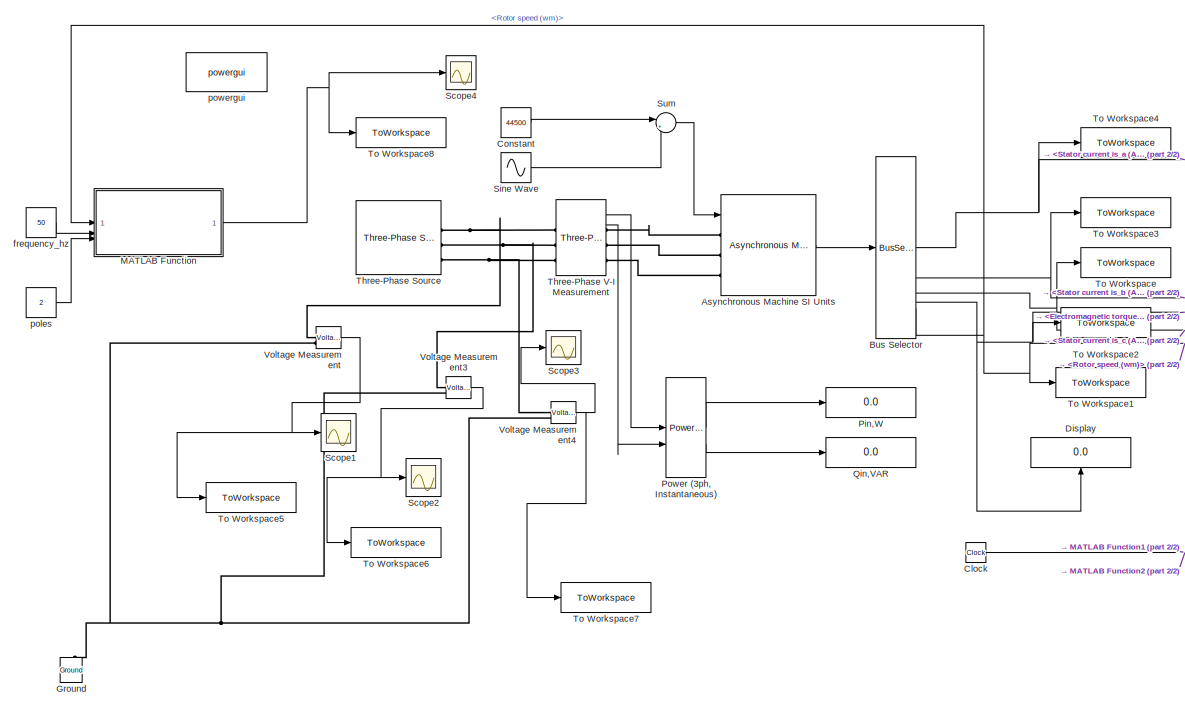
[diagram: root canvas - part 1/2, left side, full height]
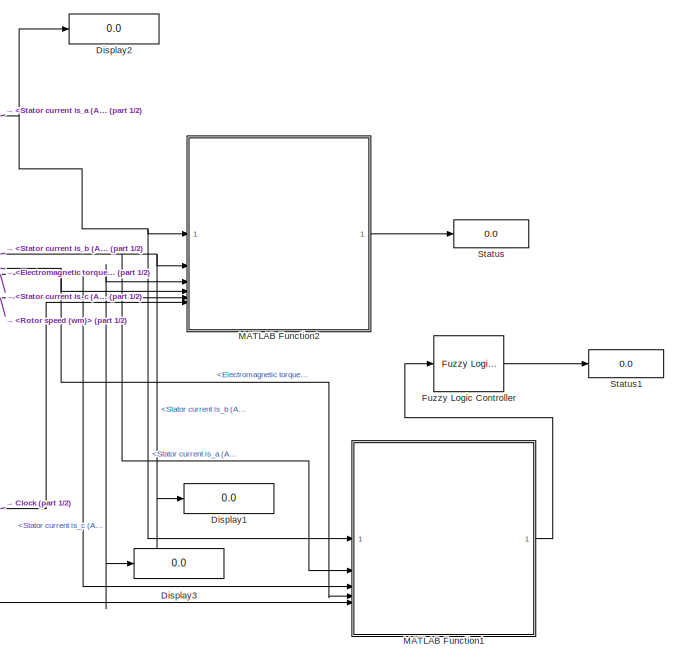
[diagram: root canvas - part 2/2, right side, full height]
MODEL slx_214c2f66c247
KIND model
CONFIG AbsTol = auto
CONFIG EnableMultiTasking = off
CONFIG FixedStep = 0.0001
CONFIG MaxStep = 1e-4
CONFIG MinStep = auto
CONFIG RelTol = 1e-3
CONFIG SampleTimeConstraint = Unconstrained
CONFIG SolverName = ode3
CONFIG StartTime = 0.0
CONFIG StopTime = 1
BLOCK [Reference] Asynchronous Machine SI Units  REF=spsAsynchronousMachineSIUnitsLib/Asynchronous Machine
SI Units
  LibrarySourceBlock = sps_lib/Electrical Machines/Asynchronous Machine\nSI Units
  SourceBlock = spsAsynchronousMachineSIUnitsLib/Asynchronous Machine\nSI Units
  SourceType = Asynchronous Machine
BLOCK [BusSelector] Bus Selector
  OutputSignals = Stator measurements.Stator current is_a (A),Stator measurements.Stator current is_b (A),Stator measurements.Stator current is_c (A),Mechanical.Electromagnetic torque Te (N*m),Mechanical.Rotor speed (wm)
BLOCK [Clock] Clock
BLOCK [Constant] Constant
  Value = 44500
BLOCK [Display] Display
  Decimation = 1
  NameLocation = right
BLOCK [Display] Display1
  Decimation = 1
BLOCK [Display] Display2
  Decimation = 1
BLOCK [Display] Display3
  Decimation = 1
BLOCK [Reference] Fuzzy Logic Controller  REF=fuzblock/Fuzzy Logic   (lib defined in mdl_858b3b3e7478)
Controller
  SourceBlock = fuzblock/Fuzzy Logic \nController
  SourceType = Fuzzy Inference System
BLOCK [Reference] Ground  REF=spsGroundLib/Ground
  LibrarySourceBlock = sps_lib/Utilities/Ground
  NameLocation = right
  SourceBlock = spsGroundLib/Ground
  SourceType = Ground
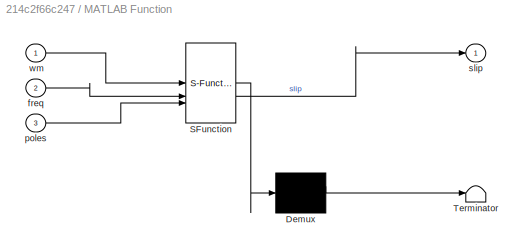
BLOCK [SubSystem] MATLAB Function
  ErrorFcn = Stateflow.Translate.translate
  PermitHierarchicalResolution = ExplicitOnly
  SFBlockType = MATLAB Function
  TreatAsAtomicUnit = on
BLOCK [Demux] MATLAB Function/ Demux 
  Outputs = 1
BLOCK [S-Function] MATLAB Function/ SFunction 
  EnableBusSupport = on
  FunctionName = sf_sfun
  PortCounts = [3 2]
  SFcnIsStateOwnerBlock = off
  SFunctionDeploymentMode = off
  Tag = Stateflow S-Function 2
BLOCK [Terminator] MATLAB Function/ Terminator 
BLOCK [Inport] MATLAB Function/freq
  Port = 2
BLOCK [Inport] MATLAB Function/poles
  Port = 3
BLOCK [Outport] MATLAB Function/slip
BLOCK [Inport] MATLAB Function/wm
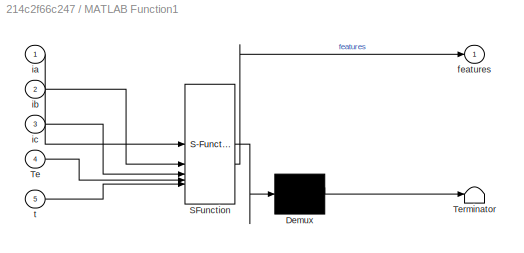
BLOCK [SubSystem] MATLAB Function1
  ErrorFcn = Stateflow.Translate.translate
  PermitHierarchicalResolution = ExplicitOnly
  SFBlockType = MATLAB Function
  TreatAsAtomicUnit = on
BLOCK [Demux] MATLAB Function1/ Demux 
  Outputs = 1
BLOCK [S-Function] MATLAB Function1/ SFunction 
  EnableBusSupport = on
  FunctionName = sf_sfun
  PortCounts = [5 2]
  SFcnIsStateOwnerBlock = off
  SFunctionDeploymentMode = off
  Tag = Stateflow S-Function 1
BLOCK [Terminator] MATLAB Function1/ Terminator 
BLOCK [Inport] MATLAB Function1/Te
  Port = 4
BLOCK [Outport] MATLAB Function1/features
BLOCK [Inport] MATLAB Function1/ia
BLOCK [Inport] MATLAB Function1/ib
  Port = 2
BLOCK [Inport] MATLAB Function1/ic
  Port = 3
BLOCK [Inport] MATLAB Function1/t
  Port = 5
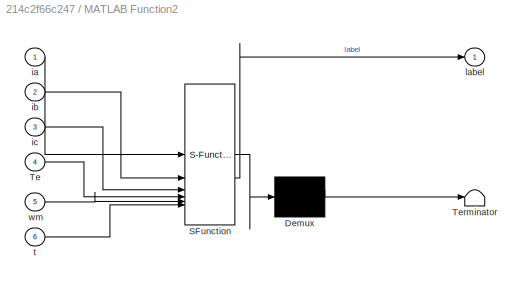
BLOCK [SubSystem] MATLAB Function2
  ErrorFcn = Stateflow.Translate.translate
  PermitHierarchicalResolution = ExplicitOnly
  SFBlockType = MATLAB Function
  TreatAsAtomicUnit = on
BLOCK [Demux] MATLAB Function2/ Demux 
  Outputs = 1
BLOCK [S-Function] MATLAB Function2/ SFunction 
  EnableBusSupport = on
  FunctionName = sf_sfun
  PortCounts = [6 2]
  SFcnIsStateOwnerBlock = off
  SFunctionDeploymentMode = off
  Tag = Stateflow S-Function 3
BLOCK [Terminator] MATLAB Function2/ Terminator 
BLOCK [Inport] MATLAB Function2/Te
  Port = 4
BLOCK [Inport] MATLAB Function2/ia
BLOCK [Inport] MATLAB Function2/ib
  Port = 2
BLOCK [Inport] MATLAB Function2/ic
  Port = 3
BLOCK [Outport] MATLAB Function2/label
BLOCK [Inport] MATLAB Function2/t
  Port = 6
BLOCK [Inport] MATLAB Function2/wm
  Port = 5
BLOCK [Display] Pin,W
  Decimation = 1
BLOCK [Reference] Power (3ph, Instantaneous)  REF=spsPower3phInstantaneousLib/Power
(3ph, Instantaneous)
  LibrarySourceBlock = sps_lib/Sensors and Measurements/Power\n(3ph, Instantaneous)
  SourceBlock = spsPower3phInstantaneousLib/Power\n(3ph, Instantaneous)
  SourceType = Power (3ph, Instantaneous)
BLOCK [Display] Qin,VAR
  Decimation = 1
BLOCK [Scope] Scope1
  Floating = off
  NumInputPorts = 1
  ScopeSpecificationString = Simulink.scopes.TimeScopeBlockCfg('CurrentConfiguration', extmgr.ConfigurationSet(extmgr.Configuration('Core','General UI',true),extmgr.Configuration('Core','Source UI',true),extmgr.Configuration('Sources','WiredSimulink',true,'DataLoggingVariableName','ScopeData1'),extmgr.Configuration('Visuals','Time Domain',true,'SerializedDisplays',{struct('MinYLimReal','-733.62329','MaxYLimReal','733.62329','...<+1421ch>
BLOCK [Scope] Scope2
  Floating = off
  NumInputPorts = 1
  ScopeSpecificationString = Simulink.scopes.TimeScopeBlockCfg('CurrentConfiguration', extmgr.ConfigurationSet(extmgr.Configuration('Core','General UI',true),extmgr.Configuration('Core','Source UI',true),extmgr.Configuration('Sources','WiredSimulink',true,'DataLoggingVariableName','ScopeData2'),extmgr.Configuration('Visuals','Time Domain',true,'SerializedDisplays',{struct('MinYLimReal','-11224.70466','MaxYLimReal','11224.7046...<+1438ch>
BLOCK [Scope] Scope3
  Floating = off
  NumInputPorts = 1
  ScopeSpecificationString = Simulink.scopes.TimeScopeBlockCfg('CurrentConfiguration', extmgr.ConfigurationSet(extmgr.Configuration('Core','General UI',true),extmgr.Configuration('Core','Source UI',true),extmgr.Configuration('Sources','WiredSimulink',true,'DataLoggingVariableName','ScopeData3'),extmgr.Configuration('Visuals','Time Domain',true,'SerializedDisplays',{struct('MinYLimReal','-733.62168','MaxYLimReal','733.62168','...<+1393ch>
BLOCK [Scope] Scope4
  Floating = off
  NumInputPorts = 1
  ScopeSpecificationString = Simulink.scopes.TimeScopeBlockCfg('CurrentConfiguration', extmgr.ConfigurationSet(extmgr.Configuration('Core','General UI',true),extmgr.Configuration('Core','Source UI',true),extmgr.Configuration('Sources','WiredSimulink',true,'DataLoggingVariableName','ScopeData4'),extmgr.Configuration('Visuals','Time Domain',true,'SerializedDisplays',{struct('MinYLimReal','0.5028','MaxYLimReal','0.52483','YLabel...<+1397ch>
BLOCK [Sin] Sine Wave
  Amplitude = 0
  Frequency = 20
  SampleTime = 0
BLOCK [Display] Status
  Decimation = 1
BLOCK [Display] Status1
  Decimation = 1
BLOCK [Sum] Sum
  Inputs = |++
BLOCK [Reference] Three-Phase Source  REF=spsThreePhaseSourceLib/Three-Phase Source
  LibrarySourceBlock = sps_lib/Sources/Three-Phase Source
  SourceBlock = spsThreePhaseSourceLib/Three-Phase Source
  SourceType = Three-Phase Source
BLOCK [Reference] Three-Phase V-I Measurement  REF=spsThreePhaseVIMeasurementLib/Three-Phase
V-I Measurement
  LibrarySourceBlock = sps_lib/Sensors and Measurements/Three-Phase\nV-I Measurement
  SourceBlock = spsThreePhaseVIMeasurementLib/Three-Phase\nV-I Measurement
  SourceType = Three-Phase VI Measurement
BLOCK [ToWorkspace] To Workspace
  FixptAsFi = on
  MaxDataPoints = inf
  SampleTime = -1
  VariableName = ic
BLOCK [ToWorkspace] To Workspace1
  FixptAsFi = on
  MaxDataPoints = inf
  SampleTime = -1
  VariableName = wm
BLOCK [ToWorkspace] To Workspace2
  FixptAsFi = on
  MaxDataPoints = inf
  SampleTime = -1
  VariableName = Te
BLOCK [ToWorkspace] To Workspace3
  FixptAsFi = on
  MaxDataPoints = inf
  SampleTime = -1
  VariableName = ib
BLOCK [ToWorkspace] To Workspace4
  FixptAsFi = on
  MaxDataPoints = inf
  SampleTime = -1
  VariableName = ia
BLOCK [ToWorkspace] To Workspace5
  FixptAsFi = on
  MaxDataPoints = inf
  SampleTime = -1
  SaveFormat = Timeseries
  VariableName = outVa
BLOCK [ToWorkspace] To Workspace6
  FixptAsFi = on
  MaxDataPoints = inf
  SampleTime = -1
  SaveFormat = Timeseries
  VariableName = outVb
BLOCK [ToWorkspace] To Workspace7
  FixptAsFi = on
  MaxDataPoints = inf
  SampleTime = -1
  SaveFormat = Timeseries
  VariableName = outVc
BLOCK [ToWorkspace] To Workspace8
  FixptAsFi = on
  MaxDataPoints = inf
  SampleTime = -1
  VariableName = outSlip
BLOCK [Reference] Voltage Measurement  REF=spsVoltageMeasurementLib/Voltage Measurement
  LibrarySourceBlock = sps_lib/Sensors and Measurements/Voltage Measurement
  SourceBlock = spsVoltageMeasurementLib/Voltage Measurement
  SourceType = Voltage Measurement
  UserDataPersistent = on
BLOCK [Reference] Voltage Measurement3  REF=spsVoltageMeasurementLib/Voltage Measurement
  LibrarySourceBlock = sps_lib/Sensors and Measurements/Voltage Measurement
  SourceBlock = spsVoltageMeasurementLib/Voltage Measurement
  SourceType = Voltage Measurement
  UserDataPersistent = on
BLOCK [Reference] Voltage Measurement4  REF=spsVoltageMeasurementLib/Voltage Measurement
  LibrarySourceBlock = sps_lib/Sensors and Measurements/Voltage Measurement
  SourceBlock = spsVoltageMeasurementLib/Voltage Measurement
  SourceType = Voltage Measurement
  UserDataPersistent = on
BLOCK [Constant] frequency_hz
  Value = 50
BLOCK [Constant] poles
  Value = 2
BLOCK [Reference] powergui  REF=sps_lib/powergui
  LibrarySourceBlock = sps_lib/powergui
  Priority = 1
  SourceBlock = sps_lib/powergui
  SourceType = PSB option menu block
LINE Asynchronous Machine SI Units:1 -> Bus Selector:1
NET Bus Selector:1 -> Display2:1, MATLAB Function1:1, MATLAB Function2:1, To Workspace4:1
NET Bus Selector:2 -> Display1:1, MATLAB Function1:2, MATLAB Function2:2, To Workspace3:1
NET Bus Selector:3 -> Display3:1, MATLAB Function1:3, MATLAB Function2:3, To Workspace:1
NET Bus Selector:4 -> Display:1, MATLAB Function1:4, MATLAB Function2:4, To Workspace2:1
NET Bus Selector:5 -> MATLAB Function2:5, MATLAB Function:1, To Workspace1:1
NET Clock:1 -> MATLAB Function1:5, MATLAB Function2:6
LINE Constant:1 -> Sum:1
LINE Fuzzy Logic Controller:1 -> Status1:1
LINE MATLAB Function1:1 -> Fuzzy Logic Controller:1
LINE MATLAB Function2:1 -> Status:1
NET MATLAB Function:1 -> Scope4:1, To Workspace8:1
LINE Power (3ph, Instantaneous):1 -> Pin,W:1
LINE Power (3ph, Instantaneous):2 -> Qin,VAR:1
LINE Sine Wave:1 -> Sum:2
LINE Sum:1 -> Asynchronous Machine SI Units:1
LINE Three-Phase V-I Measurement:1 -> Power (3ph, Instantaneous):1
LINE Three-Phase V-I Measurement:2 -> Power (3ph, Instantaneous):2
NET Voltage Measurement3:1 -> Scope2:1, To Workspace6:1
NET Voltage Measurement4:1 -> Scope3:1, To Workspace7:1
NET Voltage Measurement:1 -> Scope1:1, To Workspace5:1
LINE frequency_hz:1 -> MATLAB Function:2
LINE poles:1 -> MATLAB Function:3
PLINE Asynchronous Machine SI Units:LConn1 -- Three-Phase V-I Measurement:RConn1
PLINE Asynchronous Machine SI Units:LConn2 -- Three-Phase V-I Measurement:RConn2
PLINE Asynchronous Machine SI Units:LConn3 -- Three-Phase V-I Measurement:RConn3
PNET net1: Ground:LConn1 -- Voltage Measurement3:LConn2 -- Voltage Measurement4:LConn2 -- Voltage Measurement:LConn2
PNET net2: Three-Phase Source:RConn1 -- Three-Phase V-I Measurement:LConn1 -- Voltage Measurement:LConn1
PNET net3: Three-Phase Source:RConn2 -- Three-Phase V-I Measurement:LConn2 -- Voltage Measurement3:LConn1
PNET net4: Three-Phase Source:RConn3 -- Three-Phase V-I Measurement:LConn3 -- Voltage Measurement4:LConn1
note: NET lines group one-source signal fan-out (src -> all destinations, sorted); 1:1 wires keep LINE; PNET lines group multi-terminal physical nets as a canonical sorted terminal list (undirected conserving connections); 2-terminal nets keep the pairwise PLINE form
CHART MATLAB Function1 states=1 transitions=1
  STATE_LABEL 'eML_blk_kernel()'
  STATE_LABEL 'SCRIPT:\nfunction features = Feature_Extractor(ia, ib, ic, Te, t)\n\n%#codegen\nfeatures = zeros(1,4);   % VERY IMPORTANT\n\npersistent Te_avg learned baseline_Te\n\nif isempty(Te_avg)\n    Te_avg = 0;\n    baseline_Te = 0;\n    learned = 0;\nend\n\n% Filter currents (simple smoothing)\nalpha = 0.01;\nia = alpha*abs(ia) + (1-alpha)*abs(ia);\nib = alpha*abs(ib) + (1-alpha)*abs(ib);\nic = alpha*abs(ic) + (1-alpha)*ab...<+1061ch>'
CHART MATLAB Function states=1 transitions=1
  STATE_LABEL 'eML_blk_kernel()'
  STATE_LABEL 'SCRIPT:\nfunction slip = calculate_slip(wm, freq, poles)\n    % Calculate slip for induction motor\n    % Inputs:\n    %   wm    - Rotor speed (rad/s)\n    %   freq  - Supply frequency (Hz)\n    %   poles - Number of poles\n    % Output:\n    %   slip  - Slip (per unit, 0 to 1)\n\n    % Calculate synchronous speed in RPM\n    n_sync = (120 * freq) / poles;\n\n    % Convert rotor speed from rad/s to RPM\n    n_a...<+220ch>'
CHART MATLAB Function2 states=1 transitions=1
  STATE_LABEL 'eML_blk_kernel()'
  STATE_LABEL 'SCRIPT:\nfunction label = ThresholdFaultClassifier(ia, ib, ic, Te, wm, t)\n\n    % --- 1. SETUP PERSISTENT VARIABLES ---\n    persistent Ia_filt Ib_filt Ic_filt Te_avg\n    if isempty(Ia_filt)\n        Ia_filt = 0; Ib_filt = 0; Ic_filt = 0; Te_avg = 0;\n    end\n\n    % --- 2. CURRENT FILTER (Keep this as is) ---\n    alpha_I = 0.001; \n    Ia_filt = (1 - alpha_I) * Ia_filt + alpha_I * abs(ia);\n    Ib_filt =...<+1241ch>'
CHART  states=0 transitions=0
CHART  states=0 transitions=0
CHART  states=0 transitions=0
